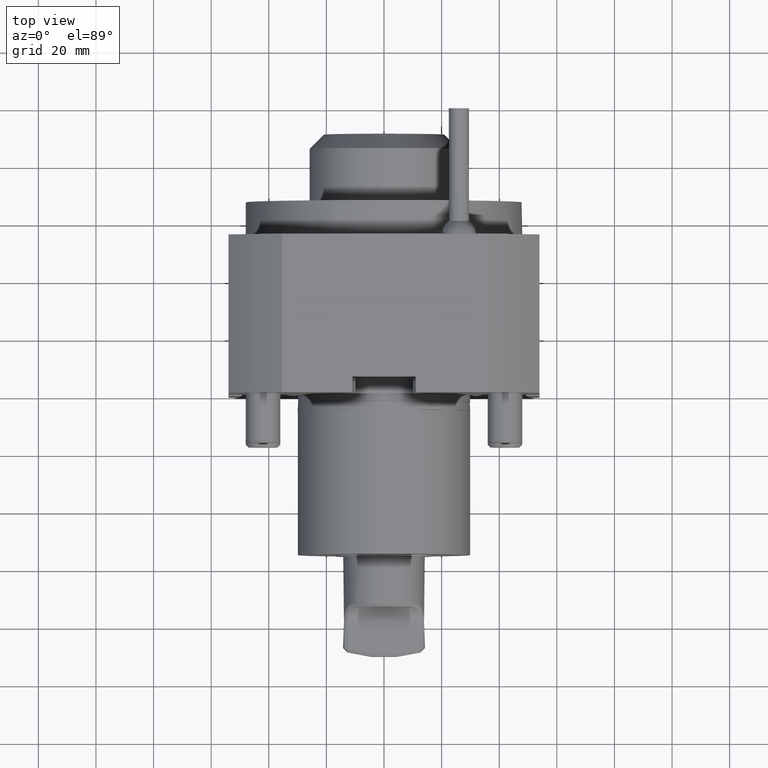
[diagram: clean part render]
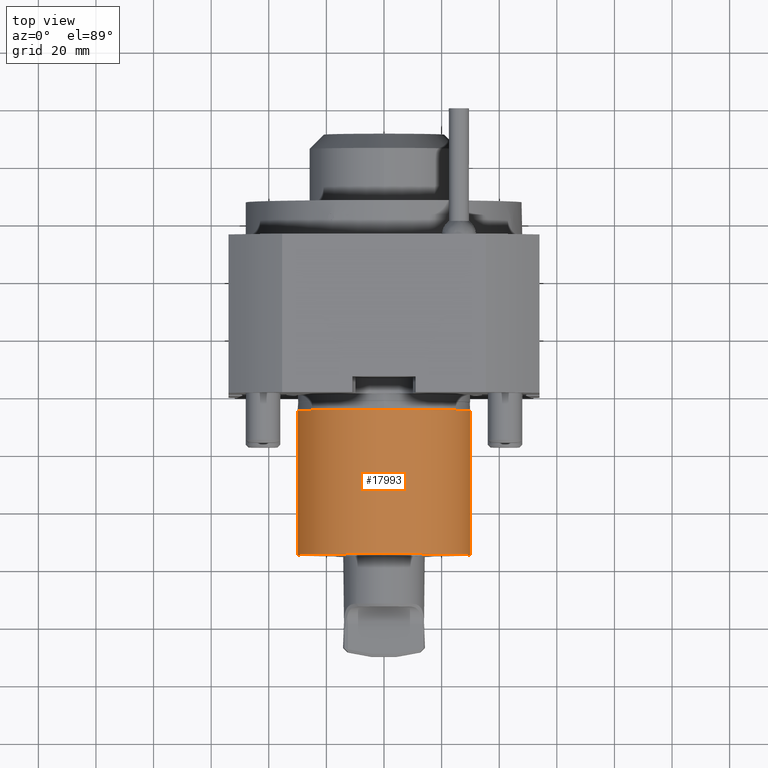
[diagram: same view with one face highlighted and labeled with its STEP entity id]
A machine part, top view. The second image highlights one B-rep face of the part: STEP entity #17993.
In plain terms, the highlighted cylindrical surface (bore or boss wall) has radius 29.9 mm, axis along (-0, -1, -0).
Its self-contained STEP definition (entity closure, byte-faithful):
#941 = EDGE_LOOP ( 'NONE', ( #12512 ) ) ;
#4899 = FACE_OUTER_BOUND ( 'NONE', #941, .T. ) ;
#5077 = VERTEX_POINT ( 'NONE', #9982 ) ;
#6597 = DIRECTION ( 'NONE',  ( -1.224646799147353207E-16, -1.000000000000000000, -0.000000000000000000 ) ) ;
#6981 = EDGE_LOOP ( 'NONE', ( #13984 ) ) ;
#7017 = AXIS2_PLACEMENT_3D ( 'NONE', #11394, #6597, #13107 ) ;
#7212 = DIRECTION ( 'NONE',  ( -2.148727864268810251E-16, -1.000000000000000000, 8.036379577296823765E-17 ) ) ;
#8887 = EDGE_CURVE ( 'NONE', #5077, #5077, #19995, .T. ) ;
#8904 = AXIS2_PLACEMENT_3D ( 'NONE', #14684, #12869, #19326 ) ;
#9147 = AXIS2_PLACEMENT_3D ( 'NONE', #13614, #7212, #17189 ) ;
#9982 = CARTESIAN_POINT ( 'NONE',  ( 29.89999999999999147, -55.49999999999994316, 1.084911242935058648E-15 ) ) ;
#10544 = VERTEX_POINT ( 'NONE', #20722 ) ;
#11394 = CARTESIAN_POINT ( 'NONE',  ( -6.613092715395582235E-16, -5.399999999999907985, 0.000000000000000000 ) ) ;
#11786 = CIRCLE ( 'NONE', #7017, 29.89999999999999858 ) ;
#12512 = ORIENTED_EDGE ( 'NONE', *, *, #16744, .T. ) ;
#12770 = FACE_OUTER_BOUND ( 'NONE', #6981, .T. ) ;
#12869 = DIRECTION ( 'NONE',  ( -1.224646799147353207E-16, -1.000000000000000000, -0.000000000000000000 ) ) ;
#13107 = DIRECTION ( 'NONE',  ( -1.000000000000000000, 1.160350151155055003E-16, 0.000000000000000000 ) ) ;
#13614 = CARTESIAN_POINT ( 'NONE',  ( -8.044299173181754037E-15, -55.49999999999993605, 1.084911242935058648E-15 ) ) ;
#13984 = ORIENTED_EDGE ( 'NONE', *, *, #8887, .F. ) ;
#14684 = CARTESIAN_POINT ( 'NONE',  ( -5.265981236333602693E-15, -42.99999999999987921, 0.000000000000000000 ) ) ;
#16241 = CYLINDRICAL_SURFACE ( 'NONE', #8904, 29.89999999999999858 ) ;
#16744 = EDGE_CURVE ( 'NONE', #10544, #10544, #11786, .T. ) ;
#17189 = DIRECTION ( 'NONE',  ( 1.000000000000000000, -2.320700302310110005E-16, 0.000000000000000000 ) ) ;
#17993 = ADVANCED_FACE ( 'Defeature completata1_20', ( #12770, #4899 ), #16241, .T. ) ;
#19326 = DIRECTION ( 'NONE',  ( 0.000000000000000000, 0.000000000000000000, 1.000000000000000000 ) ) ;
#19995 = CIRCLE ( 'NONE', #9147, 29.89999999999999858 ) ;
#20722 = CARTESIAN_POINT ( 'NONE',  ( -29.89999999999999858, -5.399999999999904432, 0.000000000000000000 ) ) ;